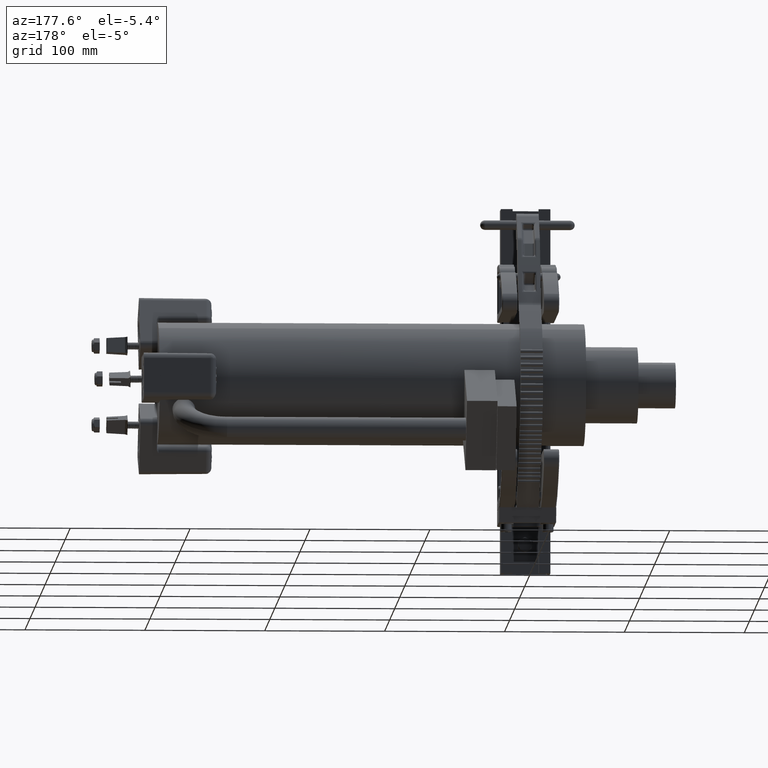
[diagram: clean part render]
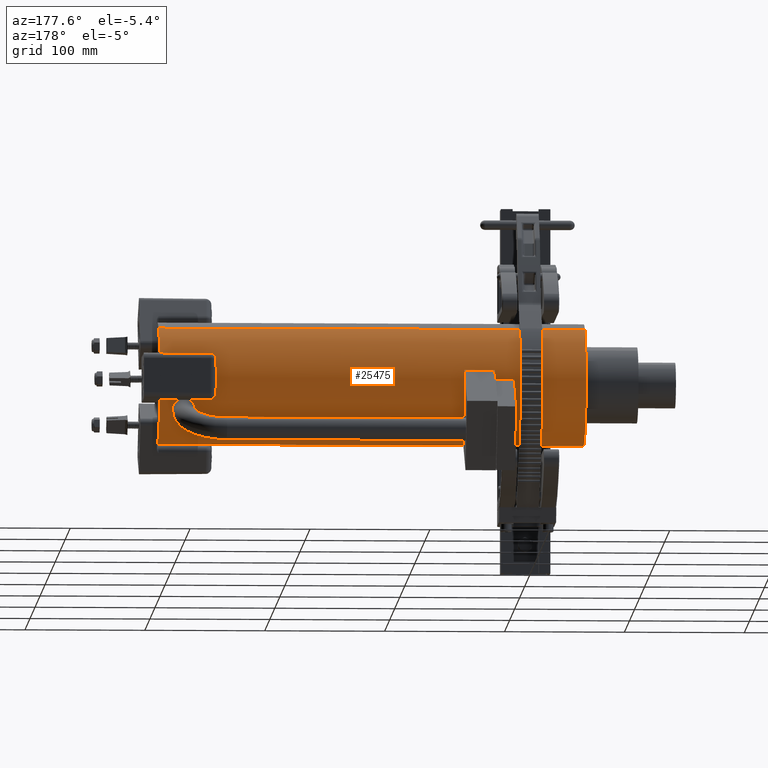
[diagram: same view with one face highlighted and labeled with its STEP entity id]
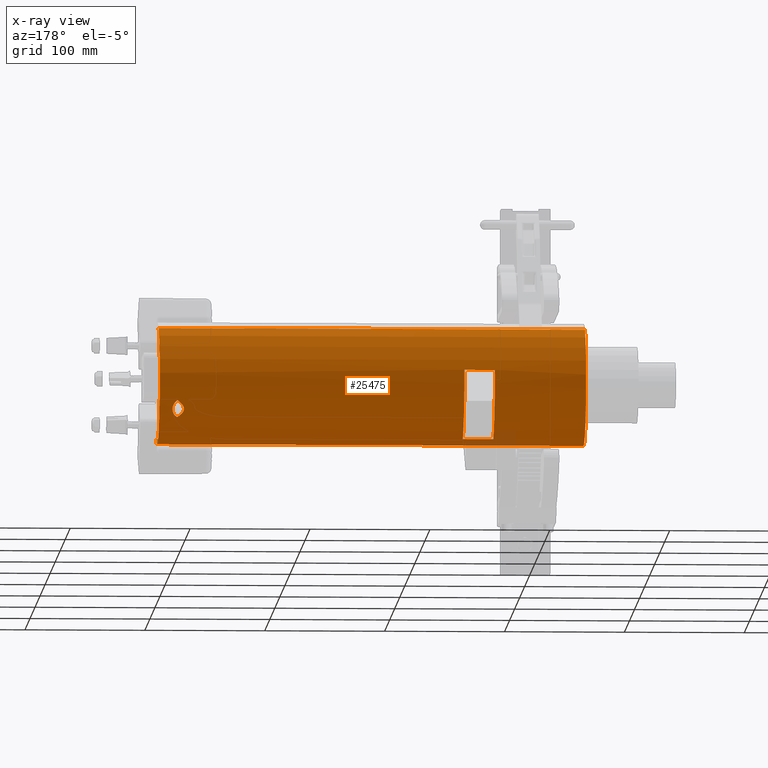
[diagram: x-ray of the same camera — body ghosted, the highlighted face saturated]
A machine part, auxiliary view. The second image highlights one B-rep face of the part: STEP entity #25475.
The next image is the same camera in x-ray: the body ghosted, the highlighted face saturated — about 1% of this face is hidden behind the body in this view.
In plain terms, the highlighted cylindrical surface (partial cylindrical patch) has radius 50.8 mm, axis along (1, 0, 0).
Its self-contained STEP definition (entity closure, byte-faithful):
#814 = VERTEX_POINT ( 'NONE', #25123 ) ;
#952 = CARTESIAN_POINT ( 'NONE',  ( 0.0000000000000000000, -1.088150418578788300E-032, -2.000000000000001800 ) ) ;
#1312 = ORIENTED_EDGE ( 'NONE', *, *, #7114, .T. ) ;
#2327 = CARTESIAN_POINT ( 'NONE',  ( 1.987812100449620300, 0.4957620727625372000, 0.2216176890724723100 ) ) ;
#3573 = VECTOR ( 'NONE', #19856, 39.37007874015748100 ) ;
#3650 = CARTESIAN_POINT ( 'NONE',  ( 1.976859125544520500, 0.5807706630533413500, -0.3033611671776146300 ) ) ;
#3828 = CARTESIAN_POINT ( 'NONE',  ( 2.000000000000001300, 0.4233703350167918900, 1.893575060069270300E-015 ) ) ;
#4896 = LINE ( 'NONE', #36437, #3573 ) ;
#5019 = CARTESIAN_POINT ( 'NONE',  ( 1.561249499599600000, 0.0000000000000000000, -1.250000000000001800 ) ) ;
#5275 = ORIENTED_EDGE ( 'NONE', *, *, #12928, .F. ) ;
#5490 = CARTESIAN_POINT ( 'NONE',  ( 2.007773587354845500, 0.8736445117827268400, -0.1019064572369121500 ) ) ;
#6542 = CARTESIAN_POINT ( 'NONE',  ( 1.979487482851067100, 0.5567925099178551200, 0.2862334241148336600 ) ) ;
#6889 = ORIENTED_EDGE ( 'NONE', *, *, #31678, .F. ) ;
#7110 = CIRCLE ( 'NONE', #19790, 2.000000000000001800 ) ;
#7114 = EDGE_CURVE ( 'NONE', #40670, #28609, #45233, .T. ) ;
#7287 = LINE ( 'NONE', #952, #18341 ) ;
#7545 = CARTESIAN_POINT ( 'NONE',  ( 2.449293598294706900E-016, 14.00000000000000200, 2.000000000000000000 ) ) ;
#7853 = VERTEX_POINT ( 'NONE', #10115 ) ;
#7857 = CARTESIAN_POINT ( 'NONE',  ( 1.983714055282098000, 0.5248550148165260800, -0.2549593525981421200 ) ) ;
#8246 = VERTEX_POINT ( 'NONE', #11891 ) ;
#10115 = CARTESIAN_POINT ( 'NONE',  ( 1.976859125544521100, 0.5807706630533413500, 0.3033611671776145200 ) ) ;
#10379 = VERTEX_POINT ( 'NONE', #41444 ) ;
#10946 = FACE_BOUND ( 'NONE', #43341, .T. ) ;
#11328 = CARTESIAN_POINT ( 'NONE',  ( 2.449293598294706900E-016, -7.318533788671499000E-033, 2.000000000000000000 ) ) ;
#11776 = DIRECTION ( 'NONE',  ( -1.598521853841405800E-032, -1.000000000000000000, -3.659266894335748100E-033 ) ) ;
#11891 = CARTESIAN_POINT ( 'NONE',  ( 0.0000000000000000000, 14.00000000000000200, -2.000000000000001800 ) ) ;
#12005 = EDGE_CURVE ( 'NONE', #28609, #7853, #21906, .T. ) ;
#12007 = CARTESIAN_POINT ( 'NONE',  ( 1.987796831126818200, 0.4963595337361464400, -0.2209440534489803500 ) ) ;
#12928 = EDGE_CURVE ( 'NONE', #8246, #51932, #7287, .T. ) ;
#14454 = VERTEX_POINT ( 'NONE', #7545 ) ;
#14722 = CARTESIAN_POINT ( 'NONE',  ( 1.999174437334288300, 0.4278780447274398400, 0.05931782063272703800 ) ) ;
#14792 = CARTESIAN_POINT ( 'NONE',  ( 0.0000000000000000000, 10.00000000000000200, 0.0000000000000000000 ) ) ;
#14884 = VECTOR ( 'NONE', #50769, 39.37007874015748100 ) ;
#15320 = EDGE_CURVE ( 'NONE', #14454, #20315, #20763, .T. ) ;
#16180 = LINE ( 'NONE', #5019, #14884 ) ;
#16214 = CARTESIAN_POINT ( 'NONE',  ( 1.991588013561483600, 0.4720240362173502800, -0.1837083925191914400 ) ) ;
#18291 = ORIENTED_EDGE ( 'NONE', *, *, #27989, .T. ) ;
#18341 = VECTOR ( 'NONE', #25380, 39.37007874015748100 ) ;
#18472 = CARTESIAN_POINT ( 'NONE',  ( 0.0000000000000000000, 0.0000000000000000000, 0.0000000000000000000 ) ) ;
#18923 = CARTESIAN_POINT ( 'NONE',  ( 1.997424326599005900, 0.4376071861734195900, 0.1024767634933249200 ) ) ;
#18994 = DIRECTION ( 'NONE',  ( 0.0000000000000000000, 0.0000000000000000000, 1.000000000000000000 ) ) ;
#19140 = EDGE_CURVE ( 'NONE', #10379, #52803, #4896, .T. ) ;
#19636 = DIRECTION ( 'NONE',  ( -1.598521853841405800E-032, -1.000000000000000000, -3.659266894335748100E-033 ) ) ;
#19790 = AXIS2_PLACEMENT_3D ( 'NONE', #14792, #43950, #18994 ) ;
#19856 = DIRECTION ( 'NONE',  ( -1.598521853841405800E-032, -1.000000000000000000, -3.659266894335748100E-033 ) ) ;
#20315 = VERTEX_POINT ( 'NONE', #11328 ) ;
#20406 = CARTESIAN_POINT ( 'NONE',  ( 1.994844805433452400, 0.4524175500833991800, -0.1441735741196400500 ) ) ;
#20763 = LINE ( 'NONE', #35126, #41052 ) ;
#21335 = AXIS2_PLACEMENT_3D ( 'NONE', #48881, #23896, #53075 ) ;
#21906 = B_SPLINE_CURVE_WITH_KNOTS ( 'NONE', 3,
 ( #51902, #35499, #39687, #14722, #43873, #18923, #48078, #23112, #52258, #27277, #2327, #31461, #6542, #35681 ),
 .UNSPECIFIED., .F., .F.,
 ( 4, 2, 2, 2, 2, 2, 4 ),
 ( 0.005740999141243602900, 0.006865505443408297100, 0.007990011745572990500, 0.009114518047737685600, 0.01023902434990238100, 0.01248803695423176700, 0.01473704955856115800 ),
 .UNSPECIFIED. ) ;
#22995 = VERTEX_POINT ( 'NONE', #40310 ) ;
#23032 = CIRCLE ( 'NONE', #45087, 2.000000000000001800 ) ;
#23112 = CARTESIAN_POINT ( 'NONE',  ( 1.994828104224520200, 0.4525149461571306200, 0.1444131253941959000 ) ) ;
#23789 = ORIENTED_EDGE ( 'NONE', *, *, #19140, .F. ) ;
#23896 = DIRECTION ( 'NONE',  ( -1.598521853841405800E-032, -1.000000000000000000, -3.659266894335748100E-033 ) ) ;
#24414 = CARTESIAN_POINT ( 'NONE',  ( 1.976859125544520500, 0.5807706630533413500, -0.3033611671776146300 ) ) ;
#24595 = CARTESIAN_POINT ( 'NONE',  ( 1.997438204146040800, 0.4375288532371836000, -0.1022217074431470800 ) ) ;
#25123 = CARTESIAN_POINT ( 'NONE',  ( 1.561249499599600500, 10.00000000000000200, -1.250000000000001800 ) ) ;
#25299 = EDGE_CURVE ( 'NONE', #814, #22995, #16180, .T. ) ;
#25380 = DIRECTION ( 'NONE',  ( -1.598521853841405800E-032, -1.000000000000000000, -3.659266894335748100E-033 ) ) ;
#25475 = ADVANCED_FACE ( 'NONE', ( #54006, #10946, #42900 ), #51378, .T. ) ;
#26216 = CARTESIAN_POINT ( 'NONE',  ( 2.007773587354845500, 0.8736445117827259500, 0.1019064572369126300 ) ) ;
#26366 = CIRCLE ( 'NONE', #21335, 2.000000000000001800 ) ;
#27277 = CARTESIAN_POINT ( 'NONE',  ( 1.990417084163846200, 0.4791532935132068500, 0.1973059084180618600 ) ) ;
#27989 = EDGE_CURVE ( 'NONE', #7853, #40670, #40354, .T. ) ;
#28609 = VERTEX_POINT ( 'NONE', #39301 ) ;
#28718 = ORIENTED_EDGE ( 'NONE', *, *, #25299, .F. ) ;
#28757 = CARTESIAN_POINT ( 'NONE',  ( 2.000000000000000000, 0.4233703350167990500, -0.02966508011446778200 ) ) ;
#29697 = ORIENTED_EDGE ( 'NONE', *, *, #46775, .F. ) ;
#30915 = DIRECTION ( 'NONE',  ( -1.598521853841405800E-032, -1.000000000000000000, -3.659266894335748100E-033 ) ) ;
#31454 = CARTESIAN_POINT ( 'NONE',  ( 1.561249499599600000, 10.00000000000000200, 1.249999999999999800 ) ) ;
#31461 = CARTESIAN_POINT ( 'NONE',  ( 1.982293139220337100, 0.5349511993179628700, 0.2665056415983230200 ) ) ;
#31678 = EDGE_CURVE ( 'NONE', #51932, #20315, #23032, .T. ) ;
#32782 = CARTESIAN_POINT ( 'NONE',  ( 1.982324509216929700, 0.5351876198712671700, -0.2655005225003863600 ) ) ;
#34068 = EDGE_CURVE ( 'NONE', #8246, #14454, #42390, .T. ) ;
#34611 = CARTESIAN_POINT ( 'NONE',  ( 1.976859125544520500, 0.5807706630533413500, -0.3033611671776146300 ) ) ;
#35126 = CARTESIAN_POINT ( 'NONE',  ( 2.449293598294708400E-016, 1.088150418578787800E-032, 2.000000000000001800 ) ) ;
#35499 = CARTESIAN_POINT ( 'NONE',  ( 2.000000000000000000, 0.4233703350167992700, 0.01484176469883595500 ) ) ;
#35681 = CARTESIAN_POINT ( 'NONE',  ( 1.976859125544521100, 0.5807706630533413500, 0.3033611671776145200 ) ) ;
#36437 = CARTESIAN_POINT ( 'NONE',  ( 1.561249499599601600, 0.0000000000000000000, 1.250000000000000200 ) ) ;
#36752 = CARTESIAN_POINT ( 'NONE',  ( 0.0000000000000000000, 14.00000000000000200, 0.0000000000000000000 ) ) ;
#36767 = AXIS2_PLACEMENT_3D ( 'NONE', #36752, #11776, #40963 ) ;
#36974 = CARTESIAN_POINT ( 'NONE',  ( 1.986448050795349500, 0.5054545965020784700, -0.2327012378402112700 ) ) ;
#37575 = ORIENTED_EDGE ( 'NONE', *, *, #49662, .F. ) ;
#38156 = EDGE_LOOP ( 'NONE', ( #23789, #37575, #28718, #29697 ) ) ;
#39301 = CARTESIAN_POINT ( 'NONE',  ( 2.000000000000001300, 0.4233703350167918900, 1.893575060069270300E-015 ) ) ;
#39687 = CARTESIAN_POINT ( 'NONE',  ( 1.999831332539455400, 0.4242838446370853500, 0.02986094655152879400 ) ) ;
#40037 = ORIENTED_EDGE ( 'NONE', *, *, #34068, .T. ) ;
#40310 = CARTESIAN_POINT ( 'NONE',  ( 1.561249499599600500, 11.00000000000000200, -1.250000000000001800 ) ) ;
#40354 =( BOUNDED_CURVE ( )  B_SPLINE_CURVE ( 3, ( #42818, #26216, #5490, #34611 ),
 .UNSPECIFIED., .F., .T. ) 
 B_SPLINE_CURVE_WITH_KNOTS ( ( 4, 4 ),
 ( 2.989324345449945000, 3.293860961729640800 ),
 .UNSPECIFIED. ) 
 CURVE ( )  GEOMETRIC_REPRESENTATION_ITEM ( )  RATIONAL_B_SPLINE_CURVE ( ( 1.000000000000000000, 0.9922863751815059800, 0.9922863751815059800, 1.000000000000000000 ) ) 
 REPRESENTATION_ITEM ( '' )  );
#40526 = ORIENTED_EDGE ( 'NONE', *, *, #12005, .T. ) ;
#40670 = VERTEX_POINT ( 'NONE', #24414 ) ;
#40963 = DIRECTION ( 'NONE',  ( 0.0000000000000000000, 0.0000000000000000000, -1.000000000000000000 ) ) ;
#41006 = CARTESIAN_POINT ( 'NONE',  ( 1.979556404976112300, 0.5571248383481395300, -0.2854074750390613300 ) ) ;
#41052 = VECTOR ( 'NONE', #30915, 39.37007874015748100 ) ;
#41181 = CARTESIAN_POINT ( 'NONE',  ( 1.990373753086030200, 0.4796012782110551400, -0.1963793258429131500 ) ) ;
#41444 = CARTESIAN_POINT ( 'NONE',  ( 1.561249499599600000, 11.00000000000000200, 1.249999999999999800 ) ) ;
#42006 = ORIENTED_EDGE ( 'NONE', *, *, #15320, .T. ) ;
#42390 = CIRCLE ( 'NONE', #36767, 2.000000000000001800 ) ;
#42818 = CARTESIAN_POINT ( 'NONE',  ( 1.976859125544521100, 0.5807706630533413500, 0.3033611671776145200 ) ) ;
#42900 = FACE_OUTER_BOUND ( 'NONE', #47232, .T. ) ;
#43253 = DIRECTION ( 'NONE',  ( 0.0000000000000000000, -5.440752092893936500E-033, -1.000000000000000000 ) ) ;
#43341 = EDGE_LOOP ( 'NONE', ( #18291, #1312, #40526 ) ) ;
#43873 = CARTESIAN_POINT ( 'NONE',  ( 1.998687871918014100, 0.4305498461997151500, 0.07383913727421950700 ) ) ;
#43950 = DIRECTION ( 'NONE',  ( 1.598521853841405800E-032, 1.000000000000000000, 3.659266894335748100E-033 ) ) ;
#44622 = CARTESIAN_POINT ( 'NONE',  ( 0.0000000000000000000, 0.0000000000000000000, 0.0000000000000000000 ) ) ;
#45087 = AXIS2_PLACEMENT_3D ( 'NONE', #44622, #19636, #48813 ) ;
#45233 = B_SPLINE_CURVE_WITH_KNOTS ( 'NONE', 3,
 ( #3650, #53589, #41006, #32782, #7857, #36974, #12007, #41181, #16214, #45388, #20406, #49592, #24595, #53775, #28757, #3828 ),
 .UNSPECIFIED., .F., .F.,
 ( 4, 2, 2, 2, 2, 2, 2, 4 ),
 ( 0.05665030722868242400, 0.05777411461344594800, 0.05889792199820946500, 0.06002172938297298900, 0.06114553676773651400, 0.06226934415250003100, 0.06339315153726354800, 0.06564076630679059600 ),
 .UNSPECIFIED. ) ;
#45388 = CARTESIAN_POINT ( 'NONE',  ( 1.993823484524836200, 0.4584321436357563000, -0.1576055259215315700 ) ) ;
#46775 = EDGE_CURVE ( 'NONE', #52803, #814, #7110, .T. ) ;
#47232 = EDGE_LOOP ( 'NONE', ( #40037, #42006, #6889, #5275 ) ) ;
#47466 = DIRECTION ( 'NONE',  ( -1.598521853841405800E-032, -1.000000000000000000, -3.659266894335748100E-033 ) ) ;
#48078 = CARTESIAN_POINT ( 'NONE',  ( 1.996647282737793000, 0.4419927163625364500, 0.1165930723752414100 ) ) ;
#48377 = AXIS2_PLACEMENT_3D ( 'NONE', #18472, #47466, #43253 ) ;
#48813 = DIRECTION ( 'NONE',  ( 0.0000000000000000000, -5.440752092893936500E-033, -1.000000000000000000 ) ) ;
#48881 = CARTESIAN_POINT ( 'NONE',  ( 0.0000000000000000000, 11.00000000000000200, 0.0000000000000000000 ) ) ;
#49592 = CARTESIAN_POINT ( 'NONE',  ( 1.996650172666788000, 0.4419768048824701000, -0.1165328504282951300 ) ) ;
#49662 = EDGE_CURVE ( 'NONE', #22995, #10379, #26366, .T. ) ;
#50769 = DIRECTION ( 'NONE',  ( 1.598521853841405800E-032, 1.000000000000000000, 3.659266894335748100E-033 ) ) ;
#51378 = CYLINDRICAL_SURFACE ( 'NONE', #48377, 2.000000000000001800 ) ;
#51902 = CARTESIAN_POINT ( 'NONE',  ( 2.000000000000001300, 0.4233703350167918900, 1.893575060069270300E-015 ) ) ;
#51932 = VERTEX_POINT ( 'NONE', #52919 ) ;
#52258 = CARTESIAN_POINT ( 'NONE',  ( 1.993788150145800600, 0.4586421719434761700, 0.1580546106419652400 ) ) ;
#52803 = VERTEX_POINT ( 'NONE', #31454 ) ;
#52919 = CARTESIAN_POINT ( 'NONE',  ( 0.0000000000000000000, -1.088150418578788300E-032, -2.000000000000001800 ) ) ;
#53075 = DIRECTION ( 'NONE',  ( 0.0000000000000000000, 0.0000000000000000000, -1.000000000000000000 ) ) ;
#53589 = CARTESIAN_POINT ( 'NONE',  ( 1.978175446694127900, 0.5687620407772913100, -0.2947833340259120000 ) ) ;
#53775 = CARTESIAN_POINT ( 'NONE',  ( 1.999340403174371800, 0.4269069081089912900, -0.05892859792628246000 ) ) ;
#54006 = FACE_BOUND ( 'NONE', #38156, .T. ) ;